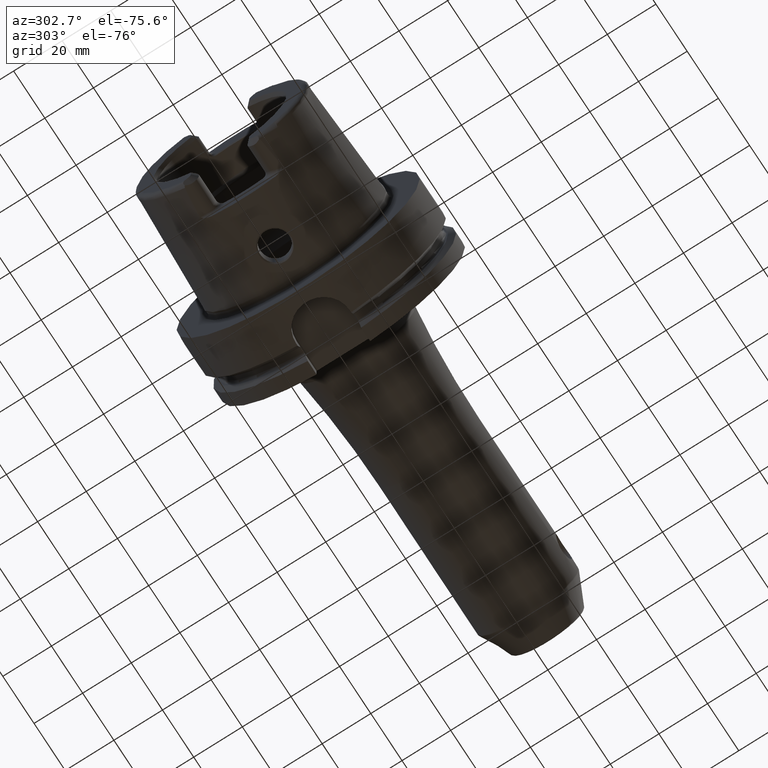
[diagram: clean part render]
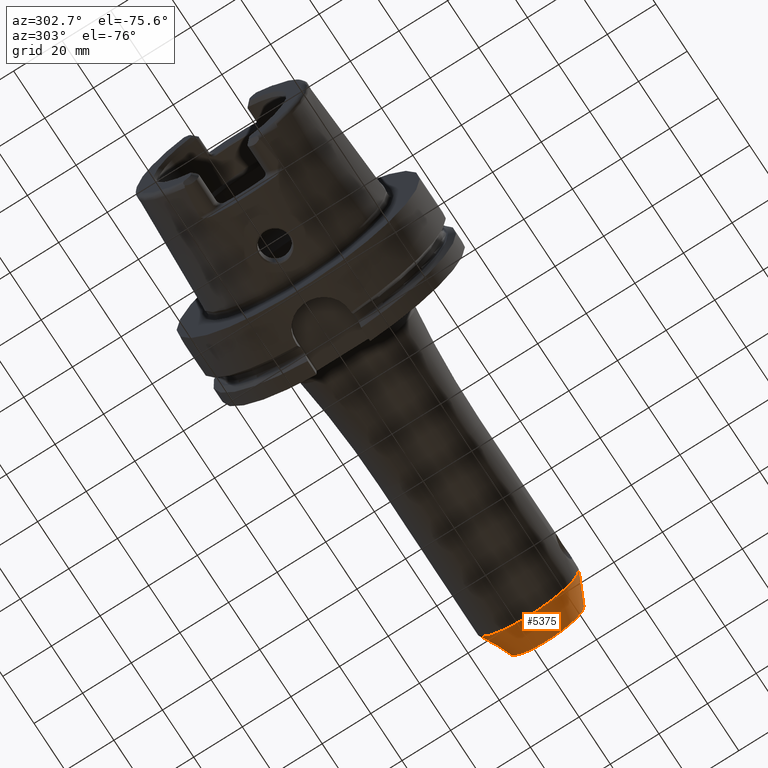
[diagram: same view with one face highlighted and labeled with its STEP entity id]
A machine part, auxiliary view. The second image highlights one B-rep face of the part: STEP entity #5375.
In plain terms, the highlighted conical surface has half-angle 25 deg.
Its self-contained STEP definition (entity closure, byte-faithful):
#2055=CARTESIAN_POINT('',(1.473338820760E2,0.E0,0.E0));
#2056=DIRECTION('',(-1.E0,0.E0,0.E0));
#2057=DIRECTION('',(0.E0,1.E0,0.E0));
#2058=AXIS2_PLACEMENT_3D('',#2055,#2056,#2057);
#2060=DIRECTION('',(-9.063077870366E-1,-4.226182617407E-1,-9.522693659068E-14));
#2061=VECTOR('',#2060,1.333844457546E1);
#2062=CARTESIAN_POINT('',(1.594226182617E2,-1.526923752623E1,
1.056403900940E-13));
#2063=LINE('',#2062,#2061);
#2064=CARTESIAN_POINT('',(1.594226182617E2,0.E0,0.E0));
#2065=DIRECTION('',(-1.E0,0.E0,0.E0));
#2066=DIRECTION('',(0.E0,1.E0,0.E0));
#2067=AXIS2_PLACEMENT_3D('',#2064,#2065,#2066);
#2069=DIRECTION('',(-9.063077870366E-1,4.226182617407E-1,9.449505688602E-14));
#2070=VECTOR('',#2069,1.333844457546E1);
#2071=CARTESIAN_POINT('',(1.594226182617E2,1.526923752623E1,
-1.061078756655E-13));
#2072=LINE('',#2071,#2070);
#3319=CARTESIAN_POINT('',(1.473338820760E2,2.090630778704E1,0.E0));
#3320=CARTESIAN_POINT('',(1.473338820760E2,-2.090630778704E1,0.E0));
#3321=VERTEX_POINT('',#3319);
#3322=VERTEX_POINT('',#3320);
#3323=CARTESIAN_POINT('',(1.594226182617E2,1.526923752623E1,0.E0));
#3324=CARTESIAN_POINT('',(1.594226182617E2,-1.526923752623E1,0.E0));
#3325=VERTEX_POINT('',#3323);
#3326=VERTEX_POINT('',#3324);
#5361=CARTESIAN_POINT('',(1.533782501689E2,0.E0,0.E0));
#5362=DIRECTION('',(-1.E0,0.E0,0.E0));
#5363=DIRECTION('',(0.E0,1.E0,0.E0));
#5364=AXIS2_PLACEMENT_3D('',#5361,#5362,#5363);
#5365=CONICAL_SURFACE('',#5364,1.808777265663E1,2.5E1);
#5367=ORIENTED_EDGE('',*,*,#5366,.T.);
#5369=ORIENTED_EDGE('',*,*,#5368,.F.);
#5370=ORIENTED_EDGE('',*,*,#5351,.F.);
#5372=ORIENTED_EDGE('',*,*,#5371,.T.);
#5373=EDGE_LOOP('',(#5367,#5369,#5370,#5372));
#5374=FACE_OUTER_BOUND('',#5373,.F.);
#5375=ADVANCED_FACE('',(#5374),#5365,.T.);
#2059=CIRCLE('',#2058,2.090630778704E1);
#2068=CIRCLE('',#2067,1.526923752623E1);
#5351=EDGE_CURVE('',#3325,#3326,#2068,.T.);
#5366=EDGE_CURVE('',#3321,#3322,#2059,.T.);
#5368=EDGE_CURVE('',#3326,#3322,#2063,.T.);
#5371=EDGE_CURVE('',#3325,#3321,#2072,.T.);